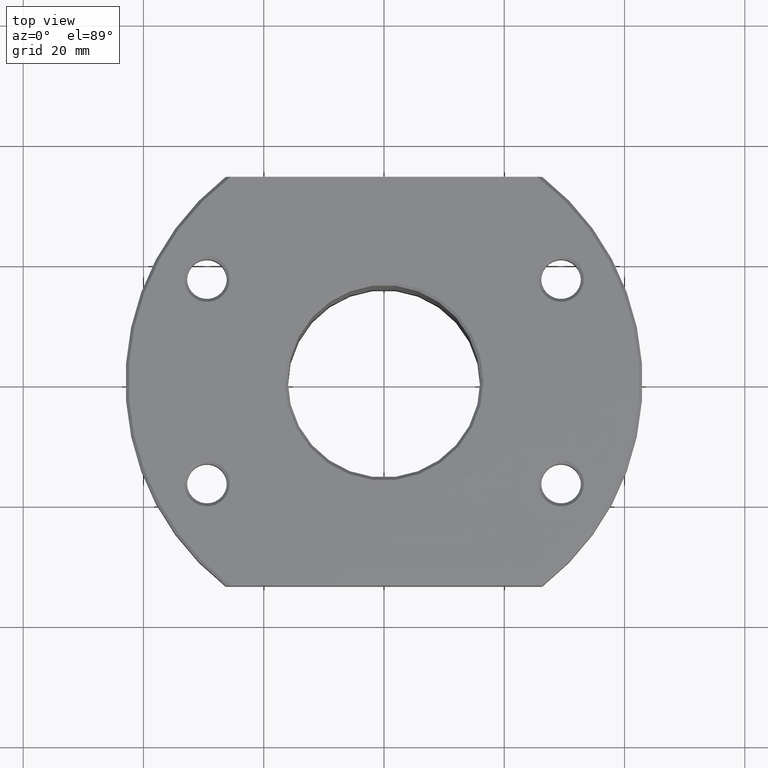
[diagram: clean part render]
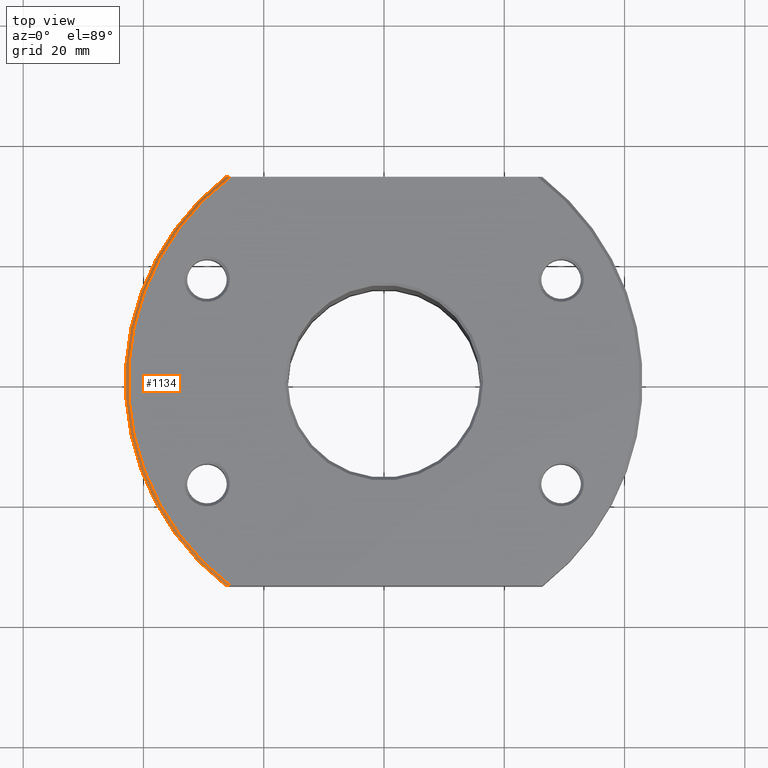
[diagram: same view with one face highlighted and labeled with its STEP entity id]
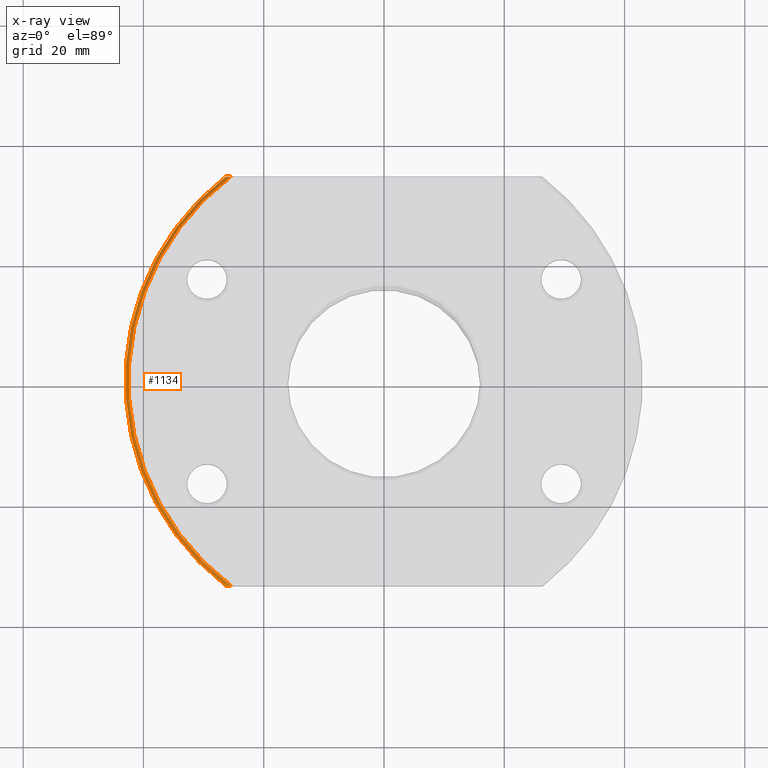
[diagram: x-ray of the same camera — body ghosted, the highlighted face saturated]
A machine part, top view. The second image highlights one B-rep face of the part: STEP entity #1134.
The next image is the same camera in x-ray: the body ghosted, the highlighted face saturated — about 0% of this face is hidden behind the body in this view.
In plain terms, the highlighted conical surface has half-angle 45 deg.
Its self-contained STEP definition (entity closure, byte-faithful):
#1072=AXIS2_PLACEMENT_3D('Circle Axis2P3D',#1070,#1071,$) ;
#1105=AXIS2_PLACEMENT_3D('Cone Axis2P3D',#1102,#1103,#1104) ;
#1117=AXIS2_PLACEMENT_3D('Circle Axis2P3D',#1115,#1116,$) ;
#1060=CARTESIAN_POINT('Vertex',(-25.5,-34.,53.)) ;
#1067=CARTESIAN_POINT('Vertex',(-25.5,34.,53.)) ;
#1070=CARTESIAN_POINT('Axis2P3D Location',(7.1054273576E-015,3.26697790257E-015,53.)) ;
#1102=CARTESIAN_POINT('Axis2P3D Location',(-1.20792265079E-012,-1.12568179319E-013,95.5)) ;
#1108=CARTESIAN_POINT('Control Point',(-26.3248931622,34.,52.5)) ;
#1109=CARTESIAN_POINT('Control Point',(-26.0484811455,34.,52.6692213211)) ;
#1110=CARTESIAN_POINT('Control Point',(-25.7735072112,34.0000001771,52.8358955332)) ;
#1111=CARTESIAN_POINT('Control Point',(-25.4999997639,34.0000001771,53.)) ;
#1112=CARTESIAN_POINT('Vertex',(-26.3248931622,34.,52.5)) ;
#1115=CARTESIAN_POINT('Axis2P3D Location',(1.42108547152E-014,2.63290366072E-015,52.5)) ;
#1119=CARTESIAN_POINT('Vertex',(-26.3248931622,-34.,52.5)) ;
#1123=CARTESIAN_POINT('Control Point',(-26.3248931622,-34.,52.5)) ;
#1124=CARTESIAN_POINT('Control Point',(-26.0484811876,-34.,52.6692212953)) ;
#1125=CARTESIAN_POINT('Control Point',(-25.7735072975,-34.0000000812,52.8358955572)) ;
#1126=CARTESIAN_POINT('Control Point',(-25.4999998918,-34.0000000812,53.)) ;
#1071=DIRECTION('Axis2P3D Direction',(0.,0.,1.)) ;
#1103=DIRECTION('Axis2P3D Direction',(2.84217094304E-014,2.67909495301E-015,-1.)) ;
#1104=DIRECTION('Axis2P3D XDirection',(0.790617267574,0.612310653356,2.41027289922E-014)) ;
#1116=DIRECTION('Axis2P3D Direction',(-9.35903163177E-015,1.20844084213E-014,1.)) ;
#1129=ORIENTED_EDGE('',*,*,#1074,.F.) ;
#1130=ORIENTED_EDGE('',*,*,#1114,.T.) ;
#1131=ORIENTED_EDGE('',*,*,#1121,.T.) ;
#1132=ORIENTED_EDGE('',*,*,#1127,.T.) ;
#1134=ADVANCED_FACE('',(#1133),#1106,.T.) ;
#1107=B_SPLINE_CURVE_WITH_KNOTS('',3,(#1108,#1109,#1110,#1111),.UNSPECIFIED.,.F.,.U.,(4,4),(0.,1.94573731424),.UNSPECIFIED.) ;
#1122=B_SPLINE_CURVE_WITH_KNOTS('',3,(#1123,#1124,#1125,#1126),.UNSPECIFIED.,.F.,.U.,(4,4),(0.,1.94573701771),.UNSPECIFIED.) ;
#1073=CIRCLE('generated circle',#1072,42.5) ;
#1118=CIRCLE('generated circle',#1117,43.) ;
#1106=CONICAL_SURFACE('Cone',#1105,0.,0.785398163397) ;
#1074=EDGE_CURVE('',#1068,#1061,#1073,.T.) ;
#1114=EDGE_CURVE('',#1068,#1113,#1107,.F.) ;
#1121=EDGE_CURVE('',#1113,#1120,#1118,.T.) ;
#1127=EDGE_CURVE('',#1120,#1061,#1122,.T.) ;
#1128=EDGE_LOOP('',(#1129,#1130,#1131,#1132)) ;
#1133=FACE_OUTER_BOUND('',#1128,.T.) ;
#1061=VERTEX_POINT('',#1060) ;
#1068=VERTEX_POINT('',#1067) ;
#1113=VERTEX_POINT('',#1112) ;
#1120=VERTEX_POINT('',#1119) ;